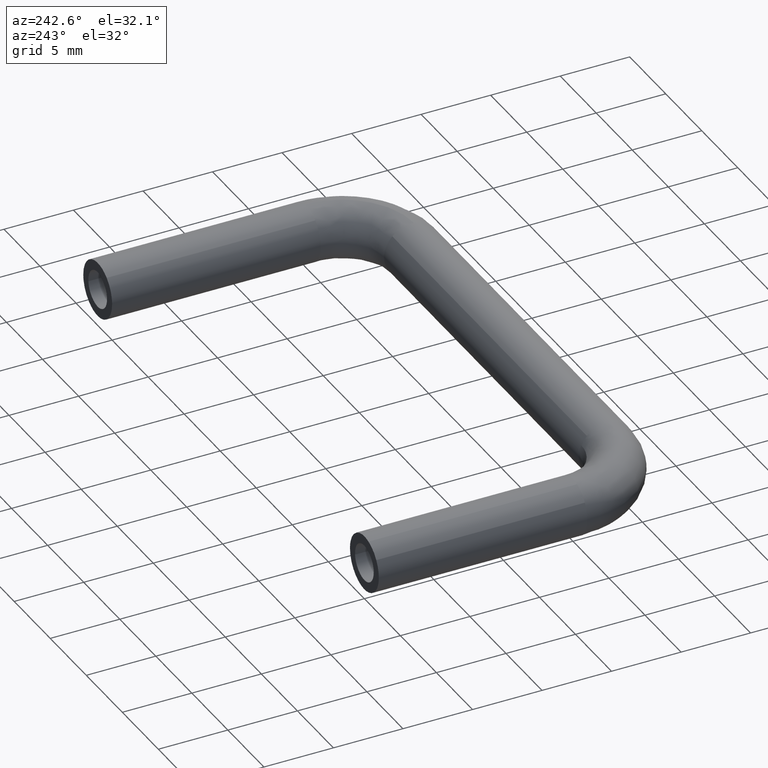
[diagram: clean part render]
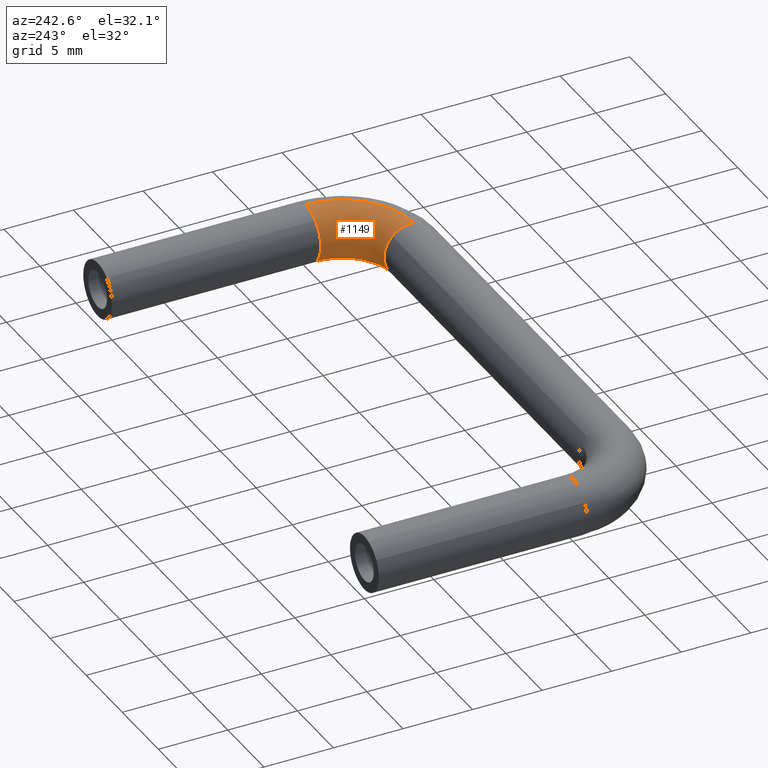
[diagram: same view with one face highlighted and labeled with its STEP entity id]
A machine part, auxiliary view. The second image highlights one B-rep face of the part: STEP entity #1149.
In plain terms, the highlighted face is a freeform B-spline surface patch.
Its self-contained STEP definition (entity closure, byte-faithful):
#426=CARTESIAN_POINT('',(36.974867920065897,-15.000000000115220,-1.999842088405528));
#427=VERTEX_POINT('',#426);
#445=CARTESIAN_POINT('',(34.999999999999993,-15.0,0.0));
#446=VERTEX_POINT('',#445);
#447=CARTESIAN_POINT('',(34.999999999999993,-15.0,0.0));
#448=CARTESIAN_POINT('',(35.000000000000007,-14.999999999999996,-1.975023859483976));
#449=CARTESIAN_POINT('',(36.974867920065904,-15.000000000115220,-1.999842088405528));
#457=(BOUNDED_CURVE()B_SPLINE_CURVE(2,(#447,#448,#449),.UNSPECIFIED.,.F.,.U.)B_SPLINE_CURVE_WITH_KNOTS((3,3),(0.0,0.247784295892287),.UNSPECIFIED.)CURVE()GEOMETRIC_REPRESENTATION_ITEM()RATIONAL_B_SPLINE_CURVE((1.0,0.709702640018732,0.994854295576251))REPRESENTATION_ITEM(''));
#458=EDGE_CURVE('',#446,#427,#457,.T.);
#460=CARTESIAN_POINT('',(35.754971735815722,-14.999999999999980,1.565217116370957));
#461=VERTEX_POINT('',#460);
#462=CARTESIAN_POINT('',(35.754971735815722,-14.999999999999982,1.565217116370958));
#463=CARTESIAN_POINT('',(35.000000000000007,-14.999999999999995,0.964686276324076));
#464=CARTESIAN_POINT('',(34.999999999999993,-15.0,0.0));
#472=(BOUNDED_CURVE()B_SPLINE_CURVE(2,(#462,#463,#464),.UNSPECIFIED.,.F.,.U.)B_SPLINE_CURVE_WITH_KNOTS((3,3),(0.857863779800497,1.0),.UNSPECIFIED.)CURVE()GEOMETRIC_REPRESENTATION_ITEM()RATIONAL_B_SPLINE_CURVE((0.856305649992272,0.833477059823160,1.0))REPRESENTATION_ITEM(''));
#473=EDGE_CURVE('',#461,#446,#472,.T.);
#587=CARTESIAN_POINT('',(37.139466504186352,-15.000000000283370,1.995131347608482));
#588=VERTEX_POINT('',#587);
#589=CARTESIAN_POINT('',(37.139466504186345,-15.000000000283373,1.995131347608482));
#590=CARTESIAN_POINT('',(37.069818232788677,-14.999999999999996,2.0));
#591=CARTESIAN_POINT('',(37.0,-15.0,2.0));
#592=CARTESIAN_POINT('',(36.301569456475768,-15.000000000000005,2.000000000000000));
#593=CARTESIAN_POINT('',(35.754971735815708,-14.999999999999984,1.565217116370958));
#601=(BOUNDED_CURVE()B_SPLINE_CURVE(2,(#589,#590,#591,#592,#593),.UNSPECIFIED.,.F.,.U.)B_SPLINE_CURVE_WITH_KNOTS((3,2,3),(0.737833686356618,0.750000000000000,0.857863779800497),.UNSPECIFIED.)CURVE()GEOMETRIC_REPRESENTATION_ITEM()RATIONAL_B_SPLINE_CURVE((0.972879876009488,0.985746276943583,1.0,0.873629721363388,0.856305649992272))REPRESENTATION_ITEM(''));
#602=EDGE_CURVE('',#588,#461,#601,.T.);
#642=CARTESIAN_POINT('',(32.000000000036209,-20.139466503343179,1.995131347667422));
#643=VERTEX_POINT('',#642);
#644=CARTESIAN_POINT('',(32.0,-18.591260098857589,1.419666119525739));
#645=VERTEX_POINT('',#644);
#646=CARTESIAN_POINT('',(32.000000000036216,-20.139466503343176,1.995131347667422));
#647=CARTESIAN_POINT('',(32.0,-20.069818231942428,2.000000000000000));
#648=CARTESIAN_POINT('',(32.0,-20.0,2.0));
#649=CARTESIAN_POINT('',(32.0,-19.176095071274911,2.000000000000000));
#650=CARTESIAN_POINT('',(31.999999999999993,-18.591260098857589,1.419666119525738));
#658=(BOUNDED_CURVE()B_SPLINE_CURVE(2,(#646,#647,#648,#649,#650),.UNSPECIFIED.,.F.,.U.)B_SPLINE_CURVE_WITH_KNOTS((3,2,3),(0.737833686501982,0.750000000000000,0.874417114703642),.UNSPECIFIED.)CURVE()GEOMETRIC_REPRESENTATION_ITEM()RATIONAL_B_SPLINE_CURVE((0.972879876316946,0.985746277113888,1.0,0.854236283195871,0.853556574977730))REPRESENTATION_ITEM(''));
#659=EDGE_CURVE('',#643,#645,#658,.T.);
#756=CARTESIAN_POINT('',(32.0,-18.0,0.0));
#757=VERTEX_POINT('',#756);
#758=CARTESIAN_POINT('',(31.999999999999993,-18.591260098857589,1.419666119525738));
#759=CARTESIAN_POINT('',(32.0,-18.000000000000007,0.832956562603464));
#760=CARTESIAN_POINT('',(32.0,-18.0,0.0));
#768=(BOUNDED_CURVE()B_SPLINE_CURVE(2,(#758,#759,#760),.UNSPECIFIED.,.F.,.U.)B_SPLINE_CURVE_WITH_KNOTS((3,3),(0.874417114703642,1.0),.UNSPECIFIED.)CURVE()GEOMETRIC_REPRESENTATION_ITEM()RATIONAL_B_SPLINE_CURVE((0.853556574977730,0.852870497990676,1.0))REPRESENTATION_ITEM(''));
#769=EDGE_CURVE('',#645,#757,#768,.T.);
#771=CARTESIAN_POINT('',(32.000000000309427,-19.974867919650571,-1.999842088400309));
#772=VERTEX_POINT('',#771);
#773=CARTESIAN_POINT('',(32.0,-18.0,0.0));
#774=CARTESIAN_POINT('',(32.000000000000007,-18.0,-1.975023858663560));
#775=CARTESIAN_POINT('',(32.000000000309427,-19.974867919650574,-1.999842088400309));
#783=(BOUNDED_CURVE()B_SPLINE_CURVE(2,(#773,#774,#775),.UNSPECIFIED.,.F.,.U.)B_SPLINE_CURVE_WITH_KNOTS((3,3),(0.0,0.247784295819239),.UNSPECIFIED.)CURVE()GEOMETRIC_REPRESENTATION_ITEM()RATIONAL_B_SPLINE_CURVE((1.0,0.709702640104314,0.994854295408121))REPRESENTATION_ITEM(''));
#784=EDGE_CURVE('',#757,#772,#783,.T.);
#1086=CARTESIAN_POINT('',(31.642616424758437,-20.127025627529385,1.995131355377935));
#1087=CARTESIAN_POINT('',(37.537966016255410,-20.537965862154927,1.995131355377935));
#1088=CARTESIAN_POINT('',(37.127025617584749,-14.642616282092858,1.995131355377935));
#1089=CARTESIAN_POINT('',(31.646586975436666,-20.070064097976729,1.999122819776260));
#1090=CARTESIAN_POINT('',(37.476438916955814,-20.476438764567408,1.999122819776260));
#1091=CARTESIAN_POINT('',(37.070064088142573,-14.646586834356125,1.999122819776261));
#1092=CARTESIAN_POINT('',(31.650566901038612,-20.012968075746208,1.999842088407632));
#1093=CARTESIAN_POINT('',(37.414766545146705,-20.414766394474380,1.999842088407632));
#1094=CARTESIAN_POINT('',(37.012968066022815,-14.650566761546829,1.999842088407631));
#1095=CARTESIAN_POINT('',(31.789630115157767,-18.017966872477039,2.024974168174338));
#1096=CARTESIAN_POINT('',(35.259862382629905,-18.259862291920356,2.024974168174337));
#1097=CARTESIAN_POINT('',(35.017966866623247,-14.789630031179273,2.024974168174339));
#1098=CARTESIAN_POINT('',(31.791377727036792,-17.992895628269377,0.025132079766706));
#1099=CARTESIAN_POINT('',(35.232781632796751,-18.232781542840765,0.025132079766706));
#1100=CARTESIAN_POINT('',(34.992895622464211,-14.791377643755926,0.025132079766706));
#1101=CARTESIAN_POINT('',(31.793125338915814,-17.967824384061721,-1.974710008640927));
#1102=CARTESIAN_POINT('',(35.205700882963583,-18.205700793761157,-1.974710008640926));
#1103=CARTESIAN_POINT('',(34.967824378305181,-14.793125256332580,-1.974710008640926));
#1104=CARTESIAN_POINT('',(31.654062124796642,-19.962825587330876,-1.999842088407632));
#1105=CARTESIAN_POINT('',(37.360605045480384,-20.360604896315191,-1.999842088407632));
#1106=CARTESIAN_POINT('',(36.962825577704741,-14.654061986700141,-1.999842088407631));
#1114=(BOUNDED_SURFACE()B_SPLINE_SURFACE(2,2,((#1086,#1089,#1092,#1095,#1098,#1101,#1104),(#1087,#1090,#1093,#1096,#1099,#1102,#1105),(#1088,#1091,#1094,#1097,#1100,#1103,#1106)),.UNSPECIFIED.,.F.,.F.,.U.)B_SPLINE_SURFACE_WITH_KNOTS((3,3),(3,2,2,3),(0.0,9.366029501457296),(0.0,0.132548213551443,3.446256712536207,6.759965211520972),.UNSPECIFIED.)GEOMETRIC_REPRESENTATION_ITEM()RATIONAL_B_SPLINE_SURFACE(((0.895729732449210,0.905606490046838,0.916342095240933,0.647951709431553,0.916342095240933,0.647951709431553,0.916342095240933),(0.587800221482116,0.594281596491894,0.601326568744382,0.425202094466791,0.601326568744382,0.425202094466791,0.601326568744382),(0.895729743804760,0.905606501527600,0.916342106857795,0.647951717645915,0.916342106857795,0.647951717645915,0.916342106857795)))REPRESENTATION_ITEM('')SURFACE());
#1115=ORIENTED_EDGE('',*,*,#602,.T.);
#1116=ORIENTED_EDGE('',*,*,#473,.T.);
#1117=ORIENTED_EDGE('',*,*,#458,.T.);
#1118=CARTESIAN_POINT('',(32.000000000309427,-19.974867919650571,-1.999842088400309));
#1119=CARTESIAN_POINT('',(36.974867920002865,-19.974867919614450,-1.999842088407632));
#1120=CARTESIAN_POINT('',(36.974867920065904,-15.000000000115215,-1.999842088405529));
#1128=(BOUNDED_CURVE()B_SPLINE_CURVE(2,(#1118,#1119,#1120),.UNSPECIFIED.,.F.,.U.)B_SPLINE_CURVE_WITH_KNOTS((3,3),(-1.734750791529143,-0.265249208389729),.UNSPECIFIED.)CURVE()GEOMETRIC_REPRESENTATION_ITEM()RATIONAL_B_SPLINE_CURVE((0.889029723530633,0.628638946248737,0.889029723559385))REPRESENTATION_ITEM(''));
#1129=EDGE_CURVE('',#772,#427,#1128,.T.);
#1130=ORIENTED_EDGE('',*,*,#1129,.F.);
#1131=ORIENTED_EDGE('',*,*,#784,.F.);
#1132=ORIENTED_EDGE('',*,*,#769,.F.);
#1133=ORIENTED_EDGE('',*,*,#659,.F.);
#1134=CARTESIAN_POINT('',(32.000000000036209,-20.139466503343183,1.995131347667422));
#1135=CARTESIAN_POINT('',(37.139466502584156,-20.139466503078477,1.995131347680864));
#1136=CARTESIAN_POINT('',(37.139466504186338,-15.000000000283373,1.995131347608482));
#1144=(BOUNDED_CURVE()B_SPLINE_CURVE(2,(#1134,#1135,#1136),.UNSPECIFIED.,.F.,.U.)B_SPLINE_CURVE_WITH_KNOTS((3,3),(-1.734750791643761,-0.265249208456181),.UNSPECIFIED.)CURVE()GEOMETRIC_REPRESENTATION_ITEM()RATIONAL_B_SPLINE_CURVE((0.869031711870188,0.614498216555533,0.869031711835566))REPRESENTATION_ITEM(''));
#1145=EDGE_CURVE('',#643,#588,#1144,.T.);
#1146=ORIENTED_EDGE('',*,*,#1145,.T.);
#1147=EDGE_LOOP('',(#1115,#1116,#1117,#1130,#1131,#1132,#1133,#1146));
#1148=FACE_OUTER_BOUND('',#1147,.T.);
#1149=ADVANCED_FACE('',(#1148),#1114,.T.);